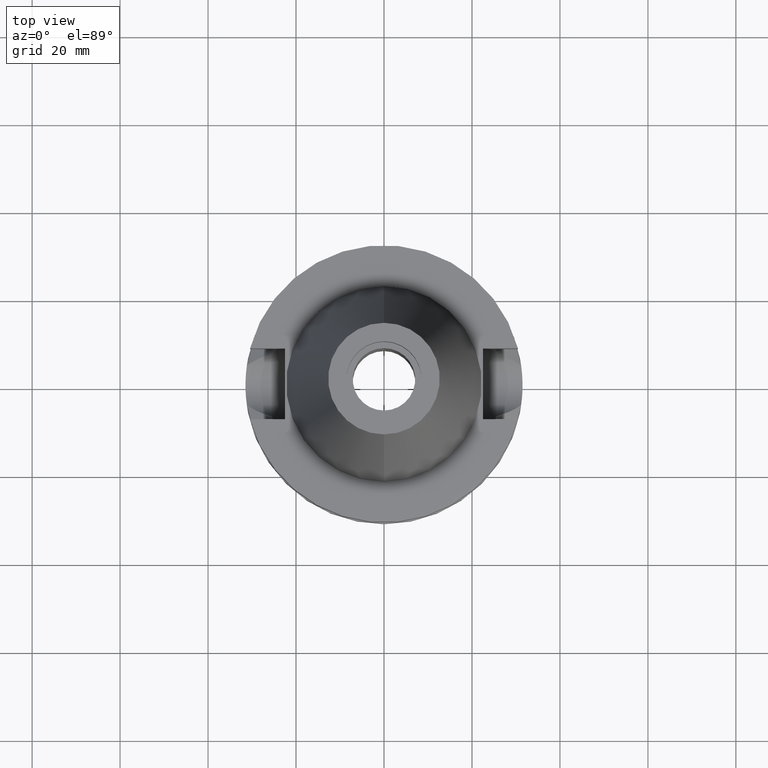
[diagram: clean part render]
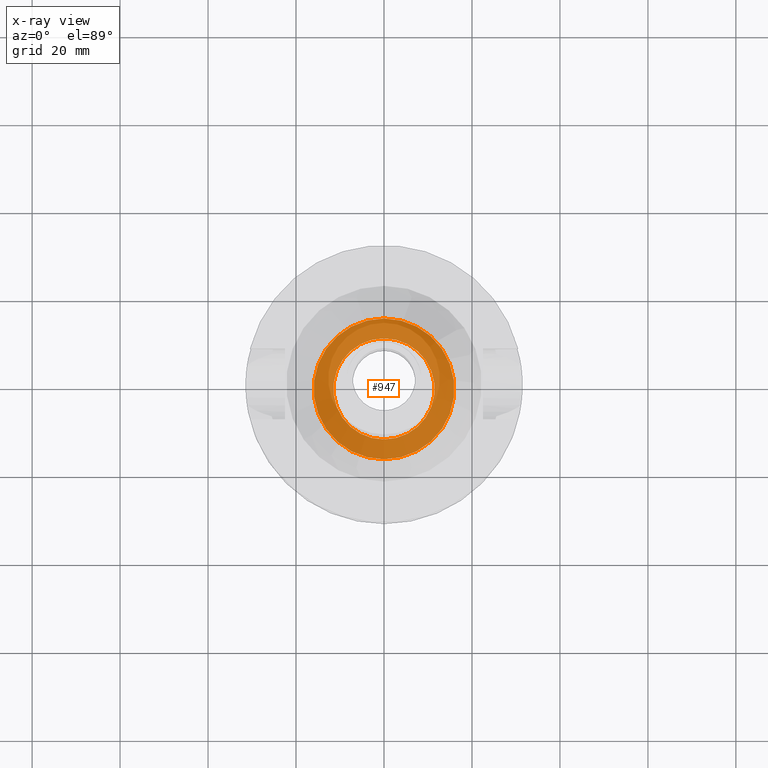
[diagram: x-ray — body ghosted, one internal face saturated and labeled with its STEP entity id]
A machine part, top view, then the same camera in x-ray: the body is ghosted and one INTERNAL B-rep face — a face not visible from any outside direction — is saturated and labeled: STEP entity #947.
In plain terms, the highlighted planar face has unit normal (0, 0, -1).
Its self-contained STEP definition (entity closure, byte-faithful):
#46 = DIRECTION ( 'NONE',  ( 0.0000000000000000000, -1.000000000000000000, 0.0000000000000000000 ) ) ;
#174 = CIRCLE ( 'NONE', #2178, 11.50000000000000000 ) ;
#207 = VERTEX_POINT ( 'NONE', #2895 ) ;
#308 = FACE_BOUND ( 'NONE', #3437, .T. ) ;
#320 = DIRECTION ( 'NONE',  ( 0.0000000000000000000, 1.000000000000000000, 0.0000000000000000000 ) ) ;
#324 = PLANE ( 'NONE',  #3103 ) ;
#823 = EDGE_CURVE ( 'NONE', #207, #3475, #1235, .T. ) ;
#947 = ADVANCED_FACE ( 'NONE', ( #3104, #308 ), #324, .F. ) ;
#948 = EDGE_CURVE ( 'NONE', #3475, #207, #174, .T. ) ;
#1017 = EDGE_CURVE ( 'NONE', #3074, #2979, #1791, .T. ) ;
#1078 = CARTESIAN_POINT ( 'NONE',  ( 0.0000000000000000000, -16.00000000000000000, -10.80000000000000071 ) ) ;
#1176 = AXIS2_PLACEMENT_3D ( 'NONE', #2672, #2425, #3486 ) ;
#1235 = CIRCLE ( 'NONE', #1288, 11.50000000000000000 ) ;
#1288 = AXIS2_PLACEMENT_3D ( 'NONE', #1934, #1404, #2493 ) ;
#1358 = ORIENTED_EDGE ( 'NONE', *, *, #948, .F. ) ;
#1404 = DIRECTION ( 'NONE',  ( 0.0000000000000000000, 0.0000000000000000000, 1.000000000000000000 ) ) ;
#1410 = CARTESIAN_POINT ( 'NONE',  ( 0.0000000000000000000, 0.0000000000000000000, -10.80000000000000071 ) ) ;
#1445 = DIRECTION ( 'NONE',  ( 0.0000000000000000000, 0.0000000000000000000, 1.000000000000000000 ) ) ;
#1621 = AXIS2_PLACEMENT_3D ( 'NONE', #3450, #3046, #320 ) ;
#1791 = CIRCLE ( 'NONE', #1621, 16.00000000000000000 ) ;
#1797 = CIRCLE ( 'NONE', #1176, 16.00000000000000000 ) ;
#1934 = CARTESIAN_POINT ( 'NONE',  ( 0.0000000000000000000, 0.0000000000000000000, -10.80000000000000071 ) ) ;
#2036 = EDGE_CURVE ( 'NONE', #2979, #3074, #1797, .T. ) ;
#2178 = AXIS2_PLACEMENT_3D ( 'NONE', #1410, #1445, #3324 ) ;
#2425 = DIRECTION ( 'NONE',  ( 0.0000000000000000000, 0.0000000000000000000, -1.000000000000000000 ) ) ;
#2478 = ORIENTED_EDGE ( 'NONE', *, *, #2036, .F. ) ;
#2493 = DIRECTION ( 'NONE',  ( 0.0000000000000000000, 1.000000000000000000, 0.0000000000000000000 ) ) ;
#2499 = DIRECTION ( 'NONE',  ( 0.0000000000000000000, 0.0000000000000000000, -1.000000000000000000 ) ) ;
#2672 = CARTESIAN_POINT ( 'NONE',  ( 0.0000000000000000000, 0.0000000000000000000, -10.80000000000000071 ) ) ;
#2757 = CARTESIAN_POINT ( 'NONE',  ( 0.0000000000000000000, 0.0000000000000000000, -10.80000000000000071 ) ) ;
#2895 = CARTESIAN_POINT ( 'NONE',  ( 0.0000000000000000000, 11.50000000000000000, -10.80000000000000071 ) ) ;
#2979 = VERTEX_POINT ( 'NONE', #1078 ) ;
#3046 = DIRECTION ( 'NONE',  ( 0.0000000000000000000, 0.0000000000000000000, -1.000000000000000000 ) ) ;
#3074 = VERTEX_POINT ( 'NONE', #3214 ) ;
#3103 = AXIS2_PLACEMENT_3D ( 'NONE', #2757, #2499, #46 ) ;
#3104 = FACE_OUTER_BOUND ( 'NONE', #3467, .T. ) ;
#3209 = CARTESIAN_POINT ( 'NONE',  ( 0.0000000000000000000, -11.50000000000000000, -10.80000000000000071 ) ) ;
#3214 = CARTESIAN_POINT ( 'NONE',  ( 0.0000000000000000000, 16.00000000000000000, -10.80000000000000071 ) ) ;
#3227 = ORIENTED_EDGE ( 'NONE', *, *, #823, .F. ) ;
#3324 = DIRECTION ( 'NONE',  ( 0.0000000000000000000, -1.000000000000000000, 0.0000000000000000000 ) ) ;
#3383 = ORIENTED_EDGE ( 'NONE', *, *, #1017, .F. ) ;
#3437 = EDGE_LOOP ( 'NONE', ( #3227, #1358 ) ) ;
#3450 = CARTESIAN_POINT ( 'NONE',  ( 0.0000000000000000000, 0.0000000000000000000, -10.80000000000000071 ) ) ;
#3467 = EDGE_LOOP ( 'NONE', ( #3383, #2478 ) ) ;
#3475 = VERTEX_POINT ( 'NONE', #3209 ) ;
#3486 = DIRECTION ( 'NONE',  ( 0.0000000000000000000, -1.000000000000000000, 0.0000000000000000000 ) ) ;